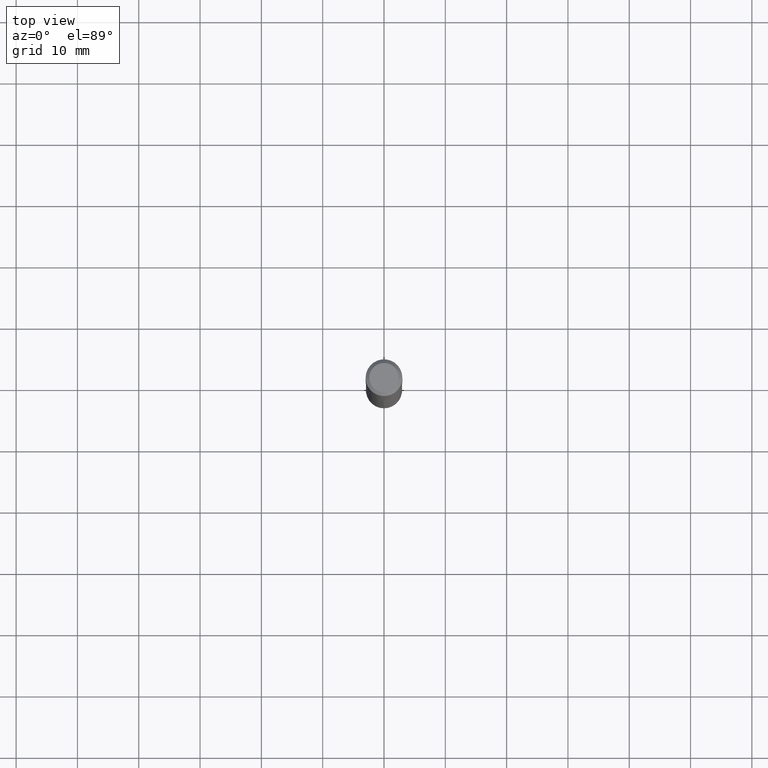
[diagram: clean part render]
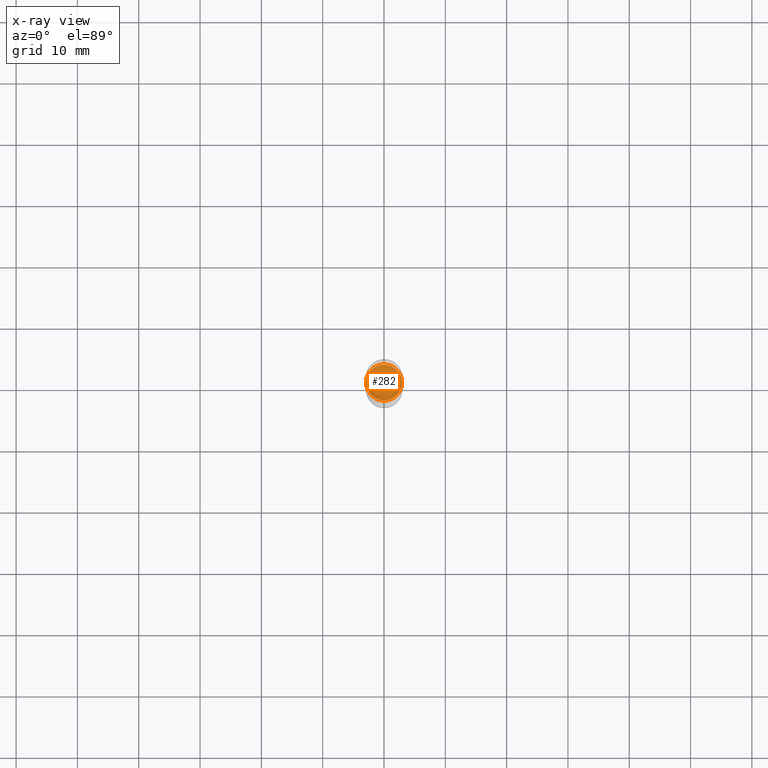
[diagram: x-ray — body ghosted, one internal face saturated and labeled with its STEP entity id]
A machine part, top view, then the same camera in x-ray: the body is ghosted and one INTERNAL B-rep face — a face not visible from any outside direction — is saturated and labeled: STEP entity #282.
In plain terms, the highlighted planar face has unit normal (-0, 0, 1).
Its self-contained STEP definition (entity closure, byte-faithful):
#4 = VERTEX_POINT ( 'NONE', #159 ) ;
#14 = CIRCLE ( 'NONE', #349, 0.1156500000000000028 ) ;
#18 = FACE_OUTER_BOUND ( 'NONE', #370, .T. ) ;
#57 = EDGE_CURVE ( 'NONE', #4, #489, #14, .T. ) ;
#102 = DIRECTION ( 'NONE',  ( 1.000000000000000000, -6.982962677686269866E-15, 0.000000000000000000 ) ) ;
#138 = AXIS2_PLACEMENT_3D ( 'NONE', #220, #281, #102 ) ;
#159 = CARTESIAN_POINT ( 'NONE',  ( 0.1156500000000000028, -7.247616963170598206E-15, -1.844499999999999584 ) ) ;
#160 = ORIENTED_EDGE ( 'NONE', *, *, #57, .F. ) ;
#179 = DIRECTION ( 'NONE',  ( 1.000000000000000000, -6.982962677686265922E-15, 4.876176775795935793E-29 ) ) ;
#220 = CARTESIAN_POINT ( 'NONE',  ( 4.510667213008483681E-29, -6.440037329496181467E-15, -1.844499999999999584 ) ) ;
#230 = CARTESIAN_POINT ( 'NONE',  ( -0.1156500000000000028, -5.615645428415514184E-15, -1.844499999999999584 ) ) ;
#242 = AXIS2_PLACEMENT_3D ( 'NONE', #400, #440, #179 ) ;
#261 = DIRECTION ( 'NONE',  ( -2.445468806185136597E-29, 3.491481338843145583E-15, 1.000000000000000000 ) ) ;
#281 = DIRECTION ( 'NONE',  ( -2.445468806185136597E-29, 3.491481338843145583E-15, 1.000000000000000000 ) ) ;
#282 = ADVANCED_FACE ( 'NONE', ( #18 ), #363, .F. ) ;
#294 = CIRCLE ( 'NONE', #138, 0.1156500000000000028 ) ;
#297 = EDGE_CURVE ( 'NONE', #489, #4, #294, .T. ) ;
#336 = DIRECTION ( 'NONE',  ( 1.000000000000000000, -6.982962677686269866E-15, 0.000000000000000000 ) ) ;
#344 = CARTESIAN_POINT ( 'NONE',  ( 4.510667213008483681E-29, -6.440037329496181467E-15, -1.844499999999999584 ) ) ;
#347 = ORIENTED_EDGE ( 'NONE', *, *, #297, .F. ) ;
#349 = AXIS2_PLACEMENT_3D ( 'NONE', #344, #261, #336 ) ;
#363 = PLANE ( 'NONE',  #242 ) ;
#370 = EDGE_LOOP ( 'NONE', ( #160, #347 ) ) ;
#400 = CARTESIAN_POINT ( 'NONE',  ( 1.468176411848597584E-29, -1.079705732457938967E-14, -1.844499999999999362 ) ) ;
#440 = DIRECTION ( 'NONE',  ( -2.438088387897960049E-29, 3.491481338843145188E-15, 1.000000000000000000 ) ) ;
#489 = VERTEX_POINT ( 'NONE', #230 ) ;